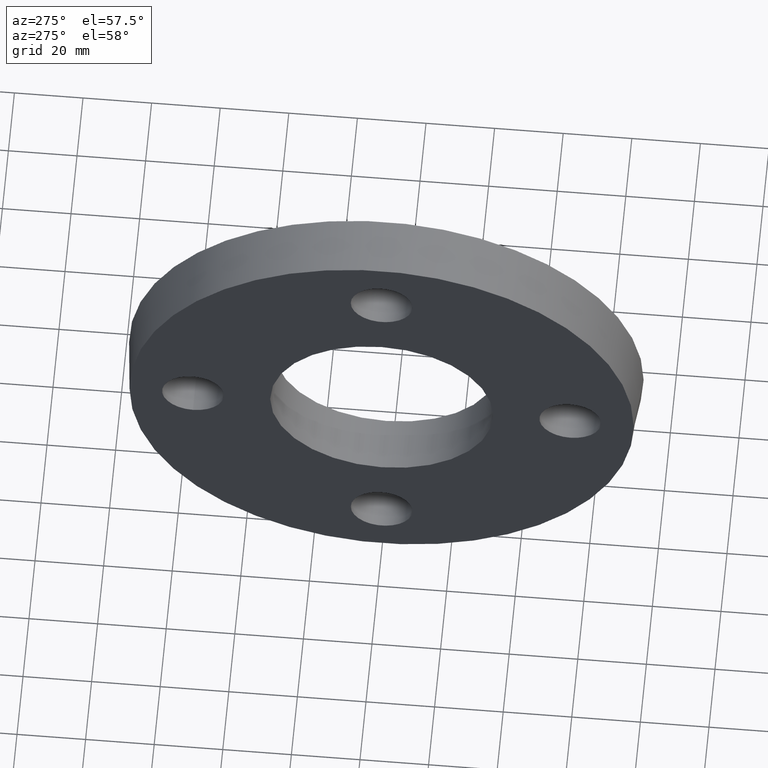
[diagram: clean part render]
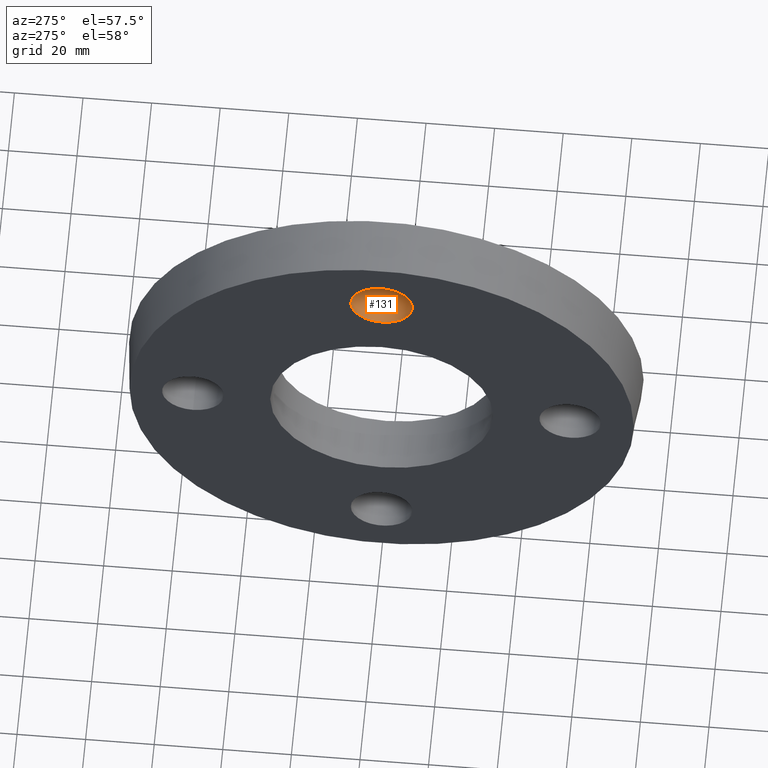
[diagram: same view with one face highlighted and labeled with its STEP entity id]
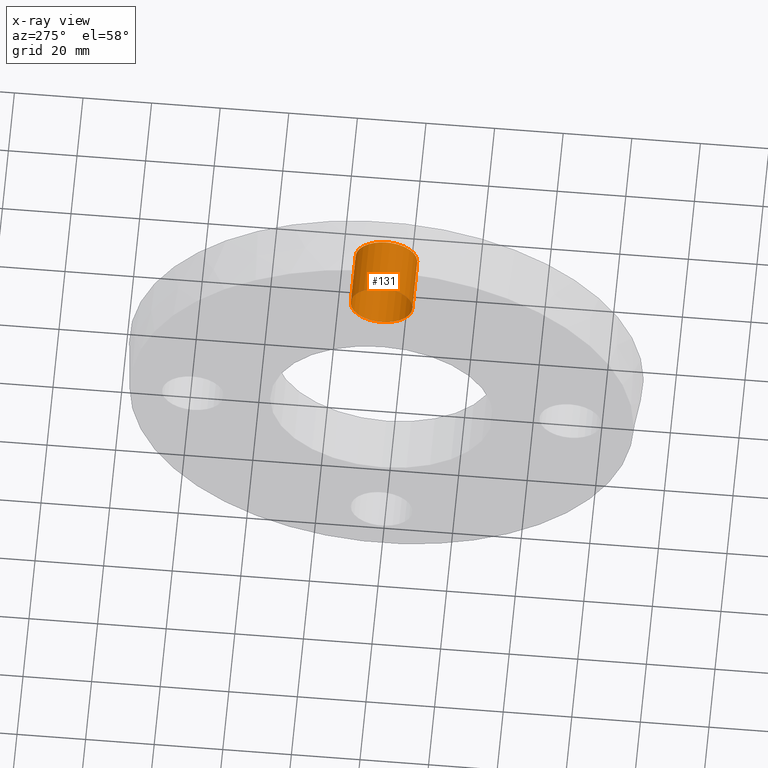
[diagram: x-ray of the same camera — body ghosted, the highlighted face saturated]
A machine part, auxiliary view. The second image highlights one B-rep face of the part: STEP entity #131.
The next image is the same camera in x-ray: the body ghosted, the highlighted face saturated — about 0% of this face is hidden behind the body in this view.
In plain terms, the highlighted cylindrical surface (bore or boss wall) has radius 9 mm, axis along (-1, 0, 0).
Its self-contained STEP definition (entity closure, byte-faithful):
#18=FACE_BOUND('',#43,.T.);
#34=FACE_OUTER_BOUND('',#42,.T.);
#42=EDGE_LOOP('',(#102));
#43=EDGE_LOOP('',(#103));
#66=CIRCLE('',#142,9.);
#67=CIRCLE('',#143,9.);
#78=VERTEX_POINT('',#205);
#79=VERTEX_POINT('',#207);
#90=EDGE_CURVE('',#78,#78,#66,.T.);
#91=EDGE_CURVE('',#79,#79,#67,.T.);
#102=ORIENTED_EDGE('',*,*,#90,.F.);
#103=ORIENTED_EDGE('',*,*,#91,.F.);
#126=CYLINDRICAL_SURFACE('',#141,9.);
#131=ADVANCED_FACE('',(#34,#18),#126,.F.);
#141=AXIS2_PLACEMENT_3D('',#204,#163,#164);
#142=AXIS2_PLACEMENT_3D('',#206,#165,#166);
#143=AXIS2_PLACEMENT_3D('',#208,#167,#168);
#163=DIRECTION('center_axis',(-1.,0.,0.));
#164=DIRECTION('ref_axis',(0.,-1.,-1.83697019872103E-16));
#165=DIRECTION('center_axis',(1.,0.,0.));
#166=DIRECTION('ref_axis',(0.,-1.,-1.83697019872103E-16));
#167=DIRECTION('center_axis',(-1.,0.,0.));
#168=DIRECTION('ref_axis',(0.,-1.,-1.83697019872103E-16));
#204=CARTESIAN_POINT('Origin',(8.,-1.01033360929657E-14,55.));
#205=CARTESIAN_POINT('',(-8.,8.99999999999999,55.));
#206=CARTESIAN_POINT('Origin',(-8.,-1.01033360929657E-14,55.));
#207=CARTESIAN_POINT('',(8.,8.99999999999999,55.));
#208=CARTESIAN_POINT('Origin',(8.,-1.01033360929657E-14,55.));